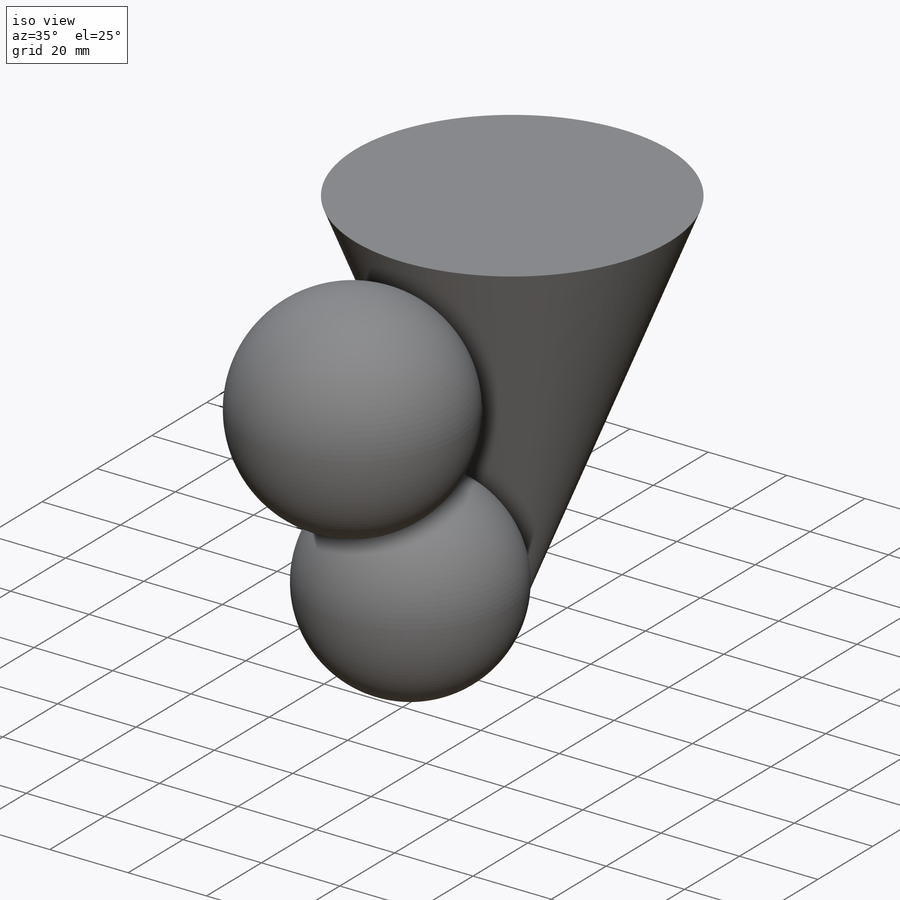
[diagram: iso view]
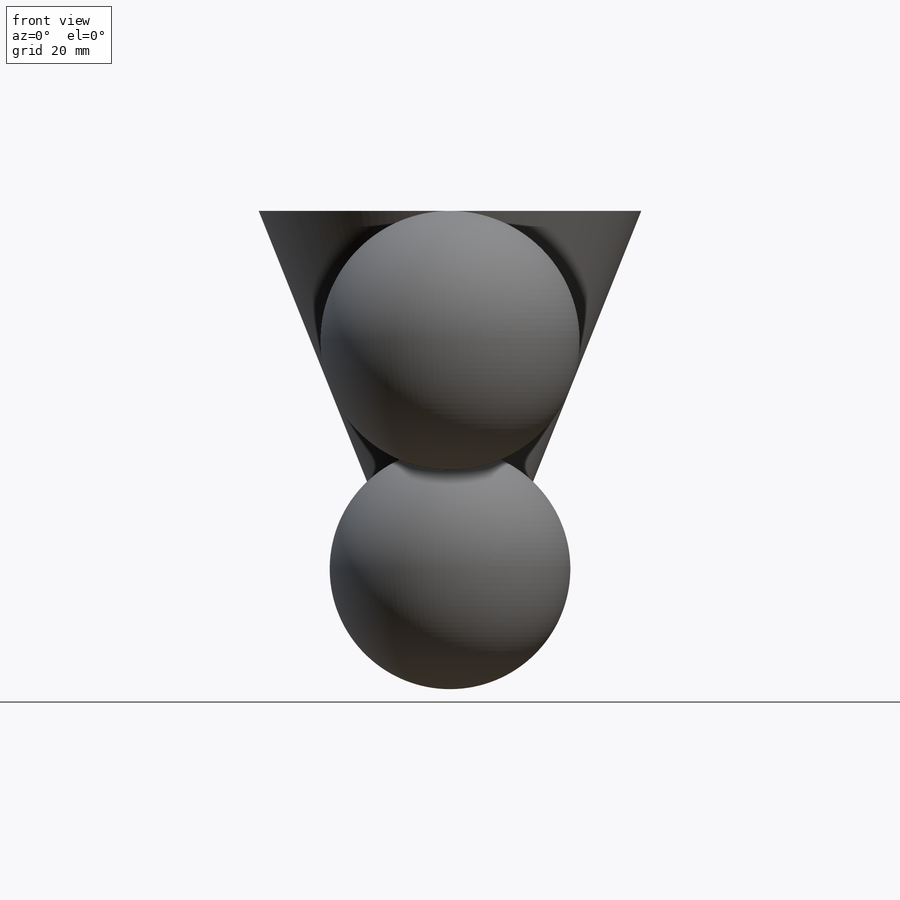
[diagram: front view]
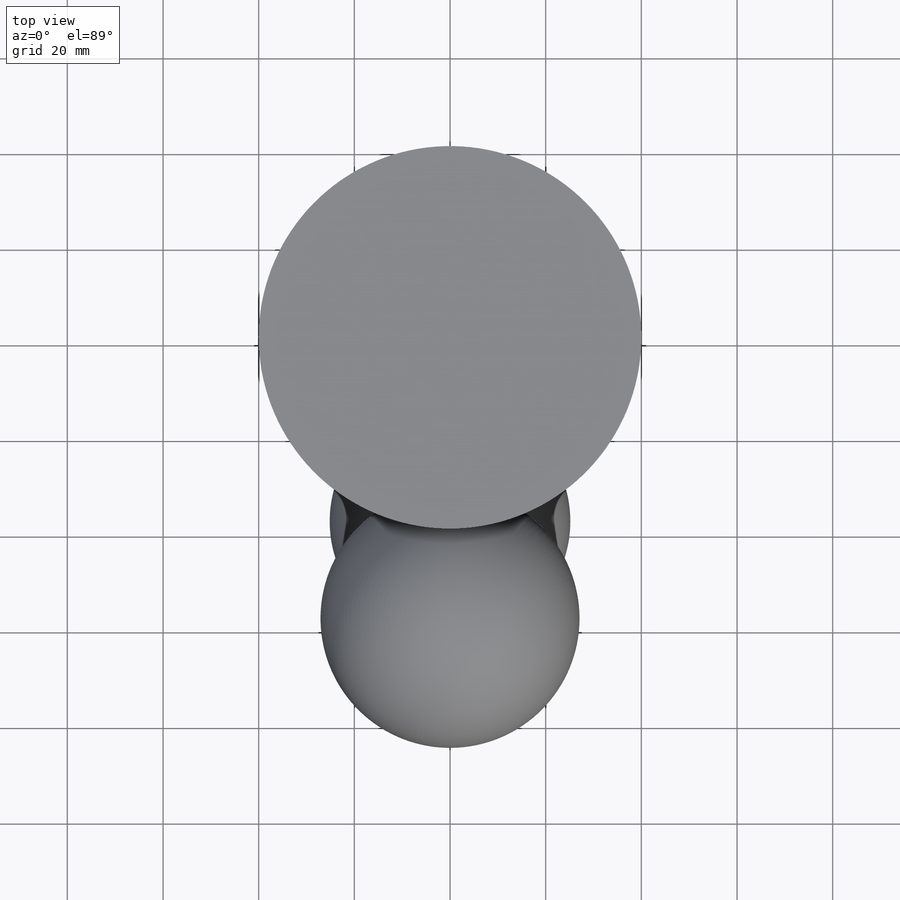
[diagram: top view]
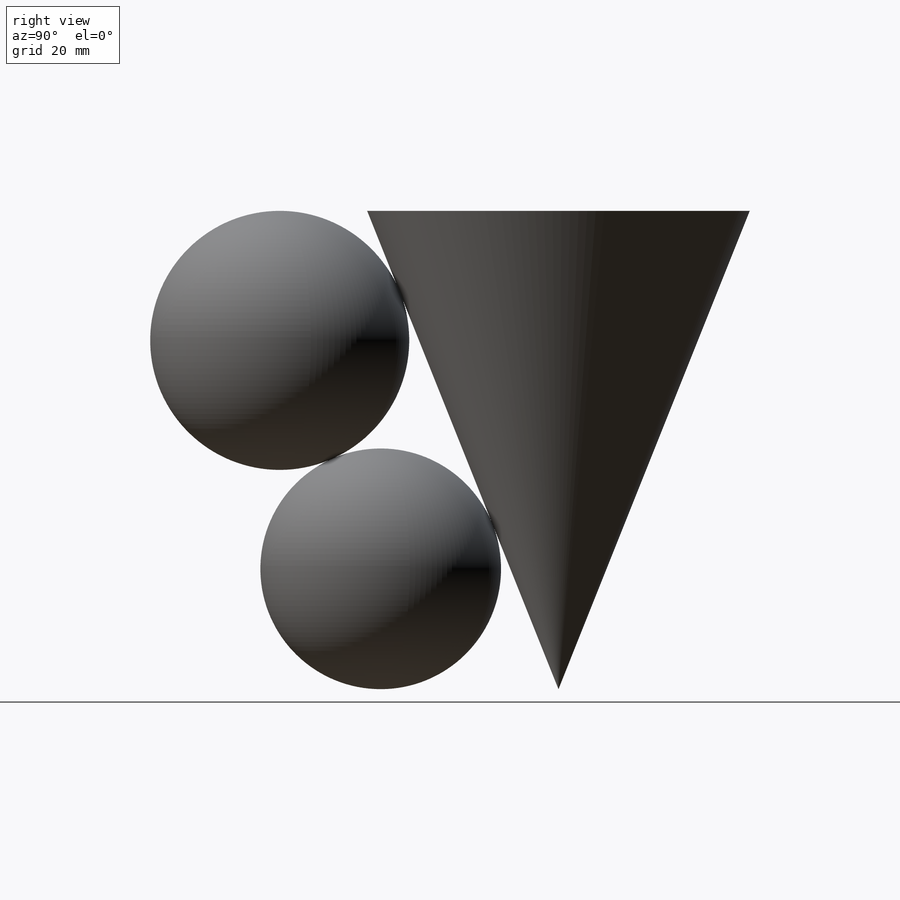
[diagram: right view]
SOLIDWORKS PART (.sldprt)
format: sldprt  version: not decoded by parser v0  size: 576,512 bytes
history: native  units: mm
features: sketch x9, plane x7, revolve x2, material x1 (+14 scaffold rows collapsed)
feature tree (33):
  scaffold x14  (default folders/planes/origin — collapsed)
  material  "Material <not specified>"
  sketch  "Sketch1"
  plane  "Plane1"  Offset=100mm
  sketch  "Sketch2"  dims[D1=~27.840313mm]
  sketch  "Sketch3"
  plane  "Plane2"
  sketch  "Sketch4"
  plane  "Plane3"
  sketch  "Sketch5"
  revolve  "SphereB"  Angle=360deg
  plane  "Plane4"
  sketch  "Sketch6"
  plane  "Plane5"
  sketch  "Sketch7"
  revolve  "SphereA"  Angle=360deg
  plane  "Plane6"  Offset=66.429509mm
  sketch  "Vertical Trace"  dims[c1.D1=~132.739143mm c1.D2=~145.448789mm c2.D2=~70.507718deg c2.D1=~145.448789mm c3.D1=~70.507718deg]
  sketch  "Horizontal Trace"  dims[c1.D1=~132.739143mm c2.D1=~49.19949deg c3.D1=~132.739143mm c4.D1=~49.19949deg]
  plane  "Touching Plane"
decode coverage: 5 of 11 modeling features carry decoded parameters
note: ~ marks probable driven/reference dimensions
note: suppression state not decoded; provenance and decode notes live in map.json
